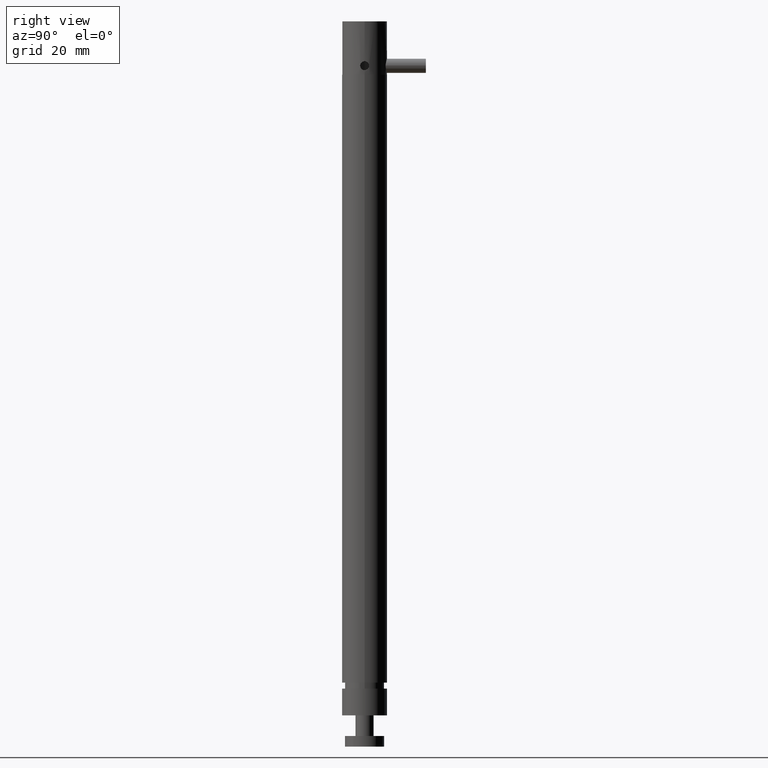
[diagram: clean part render]
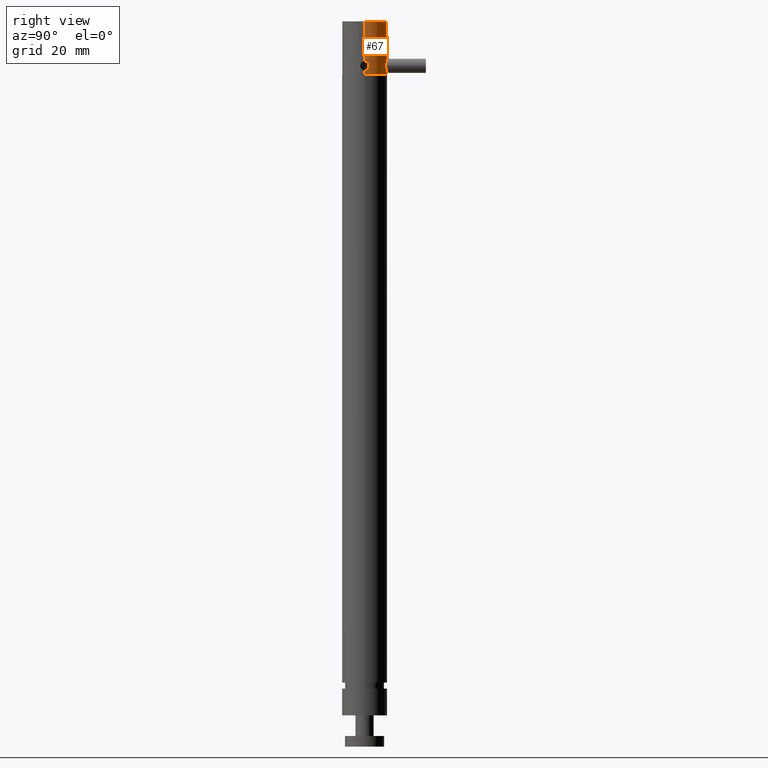
[diagram: same view with one face highlighted and labeled with its STEP entity id]
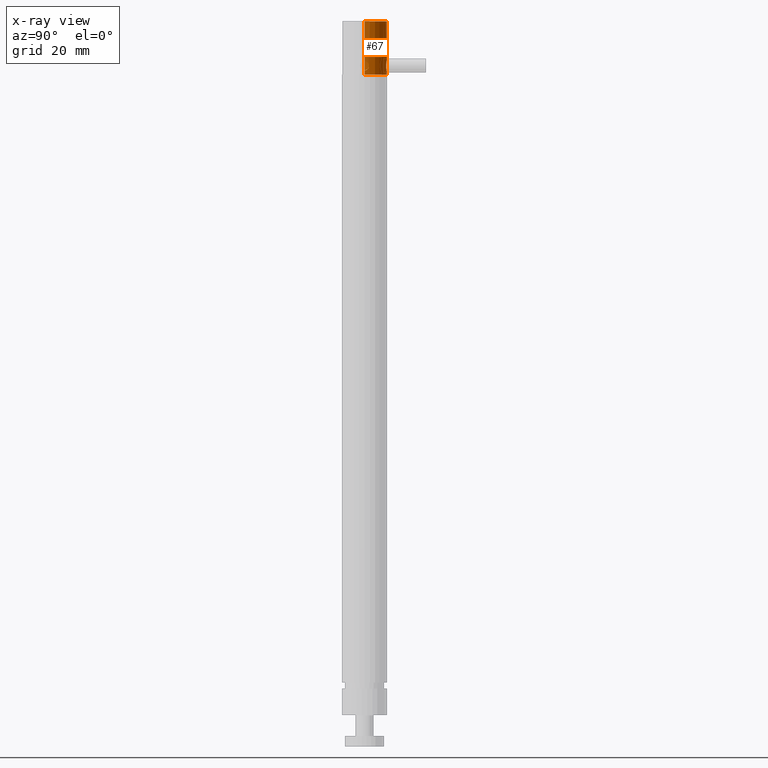
[diagram: x-ray of the same camera — body ghosted, the highlighted face saturated]
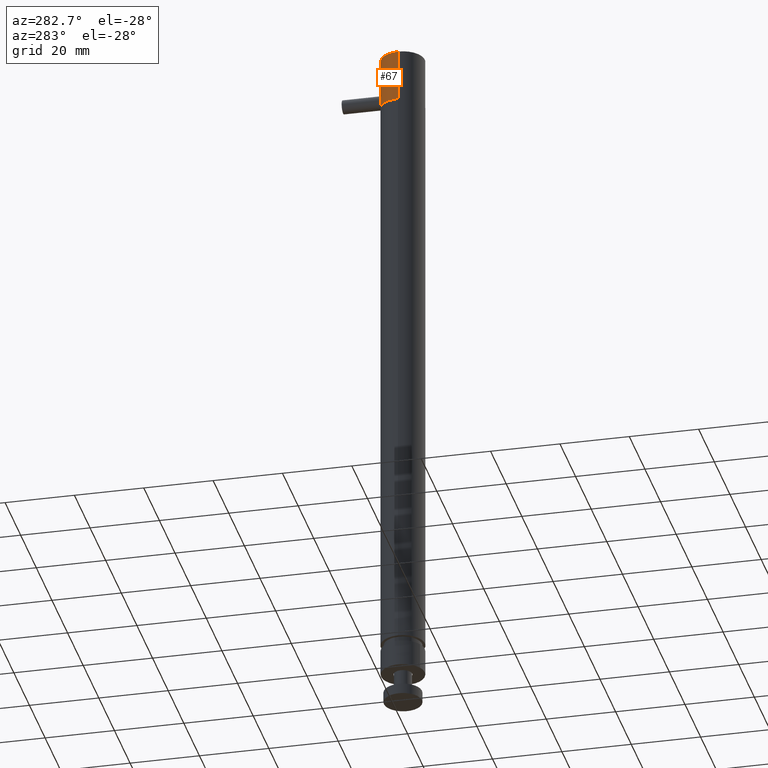
[diagram: same view with one face highlighted and labeled with its STEP entity id]
A machine part, right view. The second image highlights one B-rep face of the part: STEP entity #67.
The next image is the same camera in x-ray: the body ghosted, the highlighted face saturated — about 0% of this face is hidden behind the body in this view.
A second angle (auxiliary view) of the same face is appended — the face is thin or edge-on in the first view.
In plain terms, the highlighted cylindrical surface (edge-blend (fillet) strip) has radius 6.3 mm, axis along (0, 0, 1).
Its self-contained STEP definition (entity closure, byte-faithful):
#51 = VERTEX_POINT ( 'NONE', #578 ) ;
#52 = ORIENTED_EDGE ( 'NONE', *, *, #53, .F. ) ;
#53 = EDGE_CURVE ( 'NONE', #54, #51, #577, .T. ) ;
#54 = VERTEX_POINT ( 'NONE', #572 ) ;
#55 = ORIENTED_EDGE ( 'NONE', *, *, #102, .F. ) ;
#61 = VERTEX_POINT ( 'NONE', #562 ) ;
#64 = VERTEX_POINT ( 'NONE', #616 ) ;
#67 = ADVANCED_FACE ( 'NONE', ( #613, #612 ), #635, .T. ) ;
#68 = EDGE_LOOP ( 'NONE', ( #69, #118 ) ) ;
#69 = ORIENTED_EDGE ( 'NONE', *, *, #70, .F. ) ;
#70 = EDGE_CURVE ( 'NONE', #116, #117, #628, .T. ) ;
#102 = EDGE_CURVE ( 'NONE', #61, #54, #802, .T. ) ;
#103 = ORIENTED_EDGE ( 'NONE', *, *, #104, .F. ) ;
#104 = EDGE_CURVE ( 'NONE', #64, #61, #798, .T. ) ;
#105 = ORIENTED_EDGE ( 'NONE', *, *, #106, .F. ) ;
#106 = EDGE_CURVE ( 'NONE', #123, #64, #858, .T. ) ;
#116 = VERTEX_POINT ( 'NONE', #863 ) ;
#117 = VERTEX_POINT ( 'NONE', #862 ) ;
#118 = ORIENTED_EDGE ( 'NONE', *, *, #119, .F. ) ;
#119 = EDGE_CURVE ( 'NONE', #117, #116, #860, .T. ) ;
#120 = EDGE_LOOP ( 'NONE', ( #121, #125, #52, #55, #103, #105 ) ) ;
#121 = ORIENTED_EDGE ( 'NONE', *, *, #122, .T. ) ;
#122 = EDGE_CURVE ( 'NONE', #123, #124, #861, .T. ) ;
#123 = VERTEX_POINT ( 'NONE', #919 ) ;
#124 = VERTEX_POINT ( 'NONE', #918 ) ;
#125 = ORIENTED_EDGE ( 'NONE', *, *, #126, .T. ) ;
#126 = EDGE_CURVE ( 'NONE', #124, #51, #891, .T. ) ;
#562 = CARTESIAN_POINT ( 'NONE',  ( -1.055115465797195500, -1.638825475584408900, 1.209520379022346500 ) ) ;
#572 = CARTESIAN_POINT ( 'NONE',  ( -1.055115465797195500, -1.638825475584408900, 1.652433764849119000 ) ) ;
#573 = DIRECTION ( 'NONE',  ( 1.000000000000000000, 0.0000000000000000000, 0.0000000000000000000 ) ) ;
#574 = DIRECTION ( 'NONE',  ( 0.0000000000000000000, 0.0000000000000000000, 1.000000000000000000 ) ) ;
#575 = CARTESIAN_POINT ( 'NONE',  ( -1.303146961860187600, -1.638825475584408900, 1.652433764849119000 ) ) ;
#576 = AXIS2_PLACEMENT_3D ( 'NONE', #575, #574, #573 ) ;
#577 = CIRCLE ( 'NONE', #576, 0.2480314960629921300 ) ;
#578 = CARTESIAN_POINT ( 'NONE',  ( -1.551178457923179800, -1.638825475584408900, 1.652433764849119000 ) ) ;
#612 = FACE_OUTER_BOUND ( 'NONE', #120, .T. ) ;
#613 = FACE_BOUND ( 'NONE', #68, .T. ) ;
#616 = CARTESIAN_POINT ( 'NONE',  ( -1.055115465797195700, -1.638825475584403600, 1.111095182171954100 ) ) ;
#628 = B_SPLINE_CURVE_WITH_KNOTS ( 'NONE', 3,
 ( #683, #682, #681, #680, #679, #678, #677, #676, #675, #674, #673, #672, #671, #670, #669, #668, #667, #666, #665, #664, #663, #662, #661, #660, #659, #658, #657, #656 ),
 .UNSPECIFIED., .F., .F.,
 ( 4, 2, 2, 2, 2, 2, 2, 2, 2, 2, 2, 2, 2, 4 ),
 ( 0.0000000000000000000, 0.0003237896408170712800, 0.0006475792816341425600, 0.0009713689224512140600, 0.001295158563268285100, 0.001942737844902416200, 0.002590317126536546800, 0.002914106767353617800, 0.003237896408170688300, 0.003885475689804828100, 0.004209265330621899900, 0.004533054971438971700, 0.004856844612256043500, 0.005180634253073115300 ),
 .UNSPECIFIED. ) ;
#632 = DIRECTION ( 'NONE',  ( 1.000000000000000000, 0.0000000000000000000, 0.0000000000000000000 ) ) ;
#633 = DIRECTION ( 'NONE',  ( 0.0000000000000000000, 0.0000000000000000000, 1.000000000000000000 ) ) ;
#634 = AXIS2_PLACEMENT_3D ( 'NONE', #636, #633, #632 ) ;
#635 = CYLINDRICAL_SURFACE ( 'NONE', #634, 0.2480314960629921300 ) ;
#636 = CARTESIAN_POINT ( 'NONE',  ( -1.303146961860187600, -1.638825475584408900, 0.8650321900459696500 ) ) ;
#656 = CARTESIAN_POINT ( 'NONE',  ( -1.303119319092582700, -1.390793981061790900, 1.095347156557319200 ) ) ;
#657 = CARTESIAN_POINT ( 'NONE',  ( -1.298868903820176400, -1.390794454764704200, 1.095348965241323700 ) ) ;
#658 = CARTESIAN_POINT ( 'NONE',  ( -1.294556738038296300, -1.390907358810321300, 1.095776306894622200 ) ) ;
#659 = CARTESIAN_POINT ( 'NONE',  ( -1.286186566953388500, -1.391339052573517900, 1.097455190768762000 ) ) ;
#660 = CARTESIAN_POINT ( 'NONE',  ( -1.282136328022443400, -1.391654096066128300, 1.098692466105253100 ) ) ;
#661 = CARTESIAN_POINT ( 'NONE',  ( -1.274298517784826300, -1.392445880524946900, 1.101949739260674300 ) ) ;
#662 = CARTESIAN_POINT ( 'NONE',  ( -1.270493737897451200, -1.392927171957340400, 1.103991705112633600 ) ) ;
#663 = CARTESIAN_POINT ( 'NONE',  ( -1.263474284801864500, -1.393961661481841800, 1.108695649385928800 ) ) ;
#664 = CARTESIAN_POINT ( 'NONE',  ( -1.260215524682988700, -1.394518554072420300, 1.111370574284053600 ) ) ;
#665 = CARTESIAN_POINT ( 'NONE',  ( -1.251197449014064500, -1.396218180178084000, 1.120389969596639500 ) ) ;
#666 = CARTESIAN_POINT ( 'NONE',  ( -1.246416449338259900, -1.397345362492823800, 1.127528787330803100 ) ) ;
#667 = CARTESIAN_POINT ( 'NONE',  ( -1.241508114744102300, -1.398569114954630200, 1.139360979679978000 ) ) ;
#668 = CARTESIAN_POINT ( 'NONE',  ( -1.240275806870152700, -1.398893019003000400, 1.143419587843754500 ) ) ;
#669 = CARTESIAN_POINT ( 'NONE',  ( -1.238609900166718600, -1.399335739856665900, 1.151766068108999800 ) ) ;
#670 = CARTESIAN_POINT ( 'NONE',  ( -1.238183618600884600, -1.399452571771545800, 1.156092076509126700 ) ) ;
#671 = CARTESIAN_POINT ( 'NONE',  ( -1.238191798584960000, -1.399450351908068300, 1.168864003953583600 ) ) ;
#672 = CARTESIAN_POINT ( 'NONE',  ( -1.239917559479076600, -1.398965401519998200, 1.177437202851695700 ) ) ;
#673 = CARTESIAN_POINT ( 'NONE',  ( -1.246409090020990800, -1.397347471710731000, 1.193052067601234800 ) ) ;
#674 = CARTESIAN_POINT ( 'NONE',  ( -1.251240749321128400, -1.396210182713030900, 1.200267224014579300 ) ) ;
#675 = CARTESIAN_POINT ( 'NONE',  ( -1.260184210126617200, -1.394524374375843100, 1.209214503528660800 ) ) ;
#676 = CARTESIAN_POINT ( 'NONE',  ( -1.263505415498411600, -1.393956417755707100, 1.211944999641993100 ) ) ;
#677 = CARTESIAN_POINT ( 'NONE',  ( -1.270552589753869900, -1.392919162963394800, 1.216659013907814200 ) ) ;
#678 = CARTESIAN_POINT ( 'NONE',  ( -1.274276600506898800, -1.392448282366853100, 1.218655816806540900 ) ) ;
#679 = CARTESIAN_POINT ( 'NONE',  ( -1.282134936641528000, -1.391654049447324000, 1.221923410841207600 ) ) ;
#680 = CARTESIAN_POINT ( 'NONE',  ( -1.286271104489040700, -1.391333631105283100, 1.223181608336695300 ) ) ;
#681 = CARTESIAN_POINT ( 'NONE',  ( -1.294599115772105100, -1.390906250890265400, 1.224843407222200300 ) ) ;
#682 = CARTESIAN_POINT ( 'NONE',  ( -1.298835182627058800, -1.390793979521416800, 1.225268410518410200 ) ) ;
#683 = CARTESIAN_POINT ( 'NONE',  ( -1.303146961860187600, -1.390793979521416800, 1.225268410518410200 ) ) ;
#798 = B_SPLINE_CURVE_WITH_KNOTS ( 'NONE', 3,
 ( #850, #849, #848, #847, #846, #845, #844, #843, #842, #841, #840, #839, #838, #837, #836, #835, #834, #833, #832, #831 ),
 .UNSPECIFIED., .F., .F.,
 ( 4, 2, 2, 2, 2, 2, 2, 2, 2, 4 ),
 ( 0.0000000000000000000, 0.0004897256681457350200, 0.0009794513362914700400, 0.001469177004437205100, 0.001958902672582940100, 0.002203765506655812700, 0.002448628340728685300, 0.002938354008874430900, 0.003428079677020176100, 0.003917805345165921800 ),
 .UNSPECIFIED. ) ;
#799 = DIRECTION ( 'NONE',  ( 0.0000000000000000000, 0.0000000000000000000, 1.000000000000000000 ) ) ;
#800 = VECTOR ( 'NONE', #799, 39.37007874015748100 ) ;
#801 = CARTESIAN_POINT ( 'NONE',  ( -1.055115465797195500, -1.638825475584408900, 0.8650321900459696500 ) ) ;
#802 = LINE ( 'NONE', #801, #800 ) ;
#831 = CARTESIAN_POINT ( 'NONE',  ( -1.055115465797195500, -1.638825475584408900, 1.209520379022346500 ) ) ;
#832 = CARTESIAN_POINT ( 'NONE',  ( -1.055115465797195100, -1.632393008620987000, 1.209520379022347000 ) ) ;
#833 = CARTESIAN_POINT ( 'NONE',  ( -1.055379400403132100, -1.625923537950337200, 1.208233792662726900 ) ) ;
#834 = CARTESIAN_POINT ( 'NONE',  ( -1.056286385489273400, -1.614024662313281900, 1.203299434302422800 ) ) ;
#835 = CARTESIAN_POINT ( 'NONE',  ( -1.056920082517765400, -1.608604659558061900, 1.199683365645275700 ) ) ;
#836 = CARTESIAN_POINT ( 'NONE',  ( -1.058216536630201200, -1.599454666237075000, 1.190534818006007600 ) ) ;
#837 = CARTESIAN_POINT ( 'NONE',  ( -1.058856164792214800, -1.595837540743005200, 1.185120263078063500 ) ) ;
#838 = CARTESIAN_POINT ( 'NONE',  ( -1.059548055505169100, -1.592126662745297900, 1.176167674021649600 ) ) ;
#839 = CARTESIAN_POINT ( 'NONE',  ( -1.059731030857873100, -1.591194388217384900, 1.173095922177954900 ) ) ;
#840 = CARTESIAN_POINT ( 'NONE',  ( -1.059981094635396500, -1.589933789519147700, 1.166777717424647000 ) ) ;
#841 = CARTESIAN_POINT ( 'NONE',  ( -1.060046942454772500, -1.589611619751029900, 1.163507267226410600 ) ) ;
#842 = CARTESIAN_POINT ( 'NONE',  ( -1.060046176521106400, -1.589615403308591400, 1.153850959549134400 ) ) ;
#843 = CARTESIAN_POINT ( 'NONE',  ( -1.059773813584730600, -1.590915380103026900, 1.147362920623801200 ) ) ;
#844 = CARTESIAN_POINT ( 'NONE',  ( -1.058858000288865700, -1.595828152354376700, 1.135525189049515900 ) ) ;
#845 = CARTESIAN_POINT ( 'NONE',  ( -1.058211531496014800, -1.599491512156820900, 1.130046886012903800 ) ) ;
#846 = CARTESIAN_POINT ( 'NONE',  ( -1.056928332321171100, -1.608544917555633000, 1.120988952722611800 ) ) ;
#847 = CARTESIAN_POINT ( 'NONE',  ( -1.056289242911381900, -1.613994527978694200, 1.117332177187518900 ) ) ;
#848 = CARTESIAN_POINT ( 'NONE',  ( -1.055380065274182300, -1.625907491231391600, 1.112384882858441500 ) ) ;
#849 = CARTESIAN_POINT ( 'NONE',  ( -1.055115465797196200, -1.632304872869831700, 1.111095182171954600 ) ) ;
#850 = CARTESIAN_POINT ( 'NONE',  ( -1.055115465797195700, -1.638825475584403600, 1.111095182171954100 ) ) ;
#855 = DIRECTION ( 'NONE',  ( 0.0000000000000000000, 0.0000000000000000000, 1.000000000000000000 ) ) ;
#856 = VECTOR ( 'NONE', #855, 39.37007874015748100 ) ;
#857 = CARTESIAN_POINT ( 'NONE',  ( -1.055115465797195500, -1.638825475584408900, 0.8650321900459696500 ) ) ;
#858 = LINE ( 'NONE', #857, #856 ) ;
#860 = B_SPLINE_CURVE_WITH_KNOTS ( 'NONE', 3,
 ( #917, #916, #915, #914, #913, #912, #911, #910, #909, #908, #907, #906, #905, #904, #903, #902, #901, #900, #899, #898, #897, #896, #895, #894, #893, #892 ),
 .UNSPECIFIED., .F., .F.,
 ( 4, 2, 2, 2, 2, 2, 2, 2, 2, 2, 2, 2, 4 ),
 ( 0.005180634253073115300, 0.005828213534707262500, 0.006152003175524323900, 0.006475792816341386200, 0.006799582457158448400, 0.007123372097975509900, 0.007770951379609641400, 0.008094741020426713200, 0.008418530661243784100, 0.009066109942877936500, 0.009713689224512090500, 0.01003747886532916800, 0.01036126850614624500 ),
 .UNSPECIFIED. ) ;
#861 = CIRCLE ( 'NONE', #923, 0.2480314960629921300 ) ;
#862 = CARTESIAN_POINT ( 'NONE',  ( -1.303119319092582700, -1.390793981061790900, 1.095347156557319200 ) ) ;
#863 = CARTESIAN_POINT ( 'NONE',  ( -1.303146961860187600, -1.390793979521416800, 1.225268410518410200 ) ) ;
#888 = DIRECTION ( 'NONE',  ( 0.0000000000000000000, 0.0000000000000000000, 1.000000000000000000 ) ) ;
#889 = VECTOR ( 'NONE', #888, 39.37007874015748100 ) ;
#890 = CARTESIAN_POINT ( 'NONE',  ( -1.551178457923179800, -1.638825475584408900, 0.8650321900459696500 ) ) ;
#891 = LINE ( 'NONE', #890, #889 ) ;
#892 = CARTESIAN_POINT ( 'NONE',  ( -1.303146961860187600, -1.390793979521416800, 1.225268410518410200 ) ) ;
#893 = CARTESIAN_POINT ( 'NONE',  ( -1.307458741093316500, -1.390793979521416800, 1.225268410518410600 ) ) ;
#894 = CARTESIAN_POINT ( 'NONE',  ( -1.311706463446627800, -1.390906305813169000, 1.224843272307832400 ) ) ;
#895 = CARTESIAN_POINT ( 'NONE',  ( -1.320075553878041100, -1.391336884777150800, 1.223168877708487000 ) ) ;
#896 = CARTESIAN_POINT ( 'NONE',  ( -1.324217859538361100, -1.391659351790628400, 1.221902026649861500 ) ) ;
#897 = CARTESIAN_POINT ( 'NONE',  ( -1.335950767757325900, -1.392847136859733700, 1.217014001617649600 ) ) ;
#898 = CARTESIAN_POINT ( 'NONE',  ( -1.343154556181906300, -1.393966836808851100, 1.212176070254609800 ) ) ;
#899 = CARTESIAN_POINT ( 'NONE',  ( -1.355066890953792200, -1.396213271543999400, 1.200248336906702100 ) ) ;
#900 = CARTESIAN_POINT ( 'NONE',  ( -1.359896683026652600, -1.397350186250613900, 1.193038322313244400 ) ) ;
#901 = CARTESIAN_POINT ( 'NONE',  ( -1.364772584879745000, -1.398565800608116100, 1.181287532041153600 ) ) ;
#902 = CARTESIAN_POINT ( 'NONE',  ( -1.366032982218464000, -1.398896927760280300, 1.177140823326834300 ) ) ;
#903 = CARTESIAN_POINT ( 'NONE',  ( -1.367691863396665900, -1.399337865668691200, 1.168790620315505000 ) ) ;
#904 = CARTESIAN_POINT ( 'NONE',  ( -1.368109621639354200, -1.399452386290482600, 1.164561442585908800 ) ) ;
#905 = CARTESIAN_POINT ( 'NONE',  ( -1.368103510036440300, -1.399450727738911000, 1.151707794939192100 ) ) ;
#906 = CARTESIAN_POINT ( 'NONE',  ( -1.366410892366112500, -1.398973848909008700, 1.143251667155103600 ) ) ;
#907 = CARTESIAN_POINT ( 'NONE',  ( -1.361474077046872500, -1.397743649550368800, 1.131391190358561600 ) ) ;
#908 = CARTESIAN_POINT ( 'NONE',  ( -1.359470385149984800, -1.397261651883553200, 1.127667954602581800 ) ) ;
#909 = CARTESIAN_POINT ( 'NONE',  ( -1.354774901667554100, -1.396214748774347300, 1.120656272639895200 ) ) ;
#910 = CARTESIAN_POINT ( 'NONE',  ( -1.352047827579752700, -1.395643175273000100, 1.117336473522542200 ) ) ;
#911 = CARTESIAN_POINT ( 'NONE',  ( -1.346053103408651800, -1.394514221504098000, 1.111349727967921600 ) ) ;
#912 = CARTESIAN_POINT ( 'NONE',  ( -1.342794465248372300, -1.393957382189152700, 1.108675110660915800 ) ) ;
#913 = CARTESIAN_POINT ( 'NONE',  ( -1.335747313980854000, -1.392919955659474000, 1.103959984089489600 ) ) ;
#914 = CARTESIAN_POINT ( 'NONE',  ( -1.331945765822115200, -1.392440155997825400, 1.101925721220568400 ) ) ;
#915 = CARTESIAN_POINT ( 'NONE',  ( -1.320204294057846000, -1.391256160906192200, 1.097056369816445300 ) ) ;
#916 = CARTESIAN_POINT ( 'NONE',  ( -1.311620149637394500, -1.390793033655963700, 1.095343539189310300 ) ) ;
#917 = CARTESIAN_POINT ( 'NONE',  ( -1.303119319092582700, -1.390793981061790900, 1.095347156557319200 ) ) ;
#918 = CARTESIAN_POINT ( 'NONE',  ( -1.551178457923184900, -1.638825475584408900, 1.061882583746756000 ) ) ;
#919 = CARTESIAN_POINT ( 'NONE',  ( -1.055115465797200600, -1.638825475584408900, 1.061882583746756000 ) ) ;
#920 = DIRECTION ( 'NONE',  ( -1.000000000000000000, 0.0000000000000000000, 0.0000000000000000000 ) ) ;
#921 = DIRECTION ( 'NONE',  ( 0.0000000000000000000, 0.0000000000000000000, 1.000000000000000000 ) ) ;
#922 = CARTESIAN_POINT ( 'NONE',  ( -1.303146961860192700, -1.638825475584403600, 1.061882583746756000 ) ) ;
#923 = AXIS2_PLACEMENT_3D ( 'NONE', #922, #921, #920 ) ;